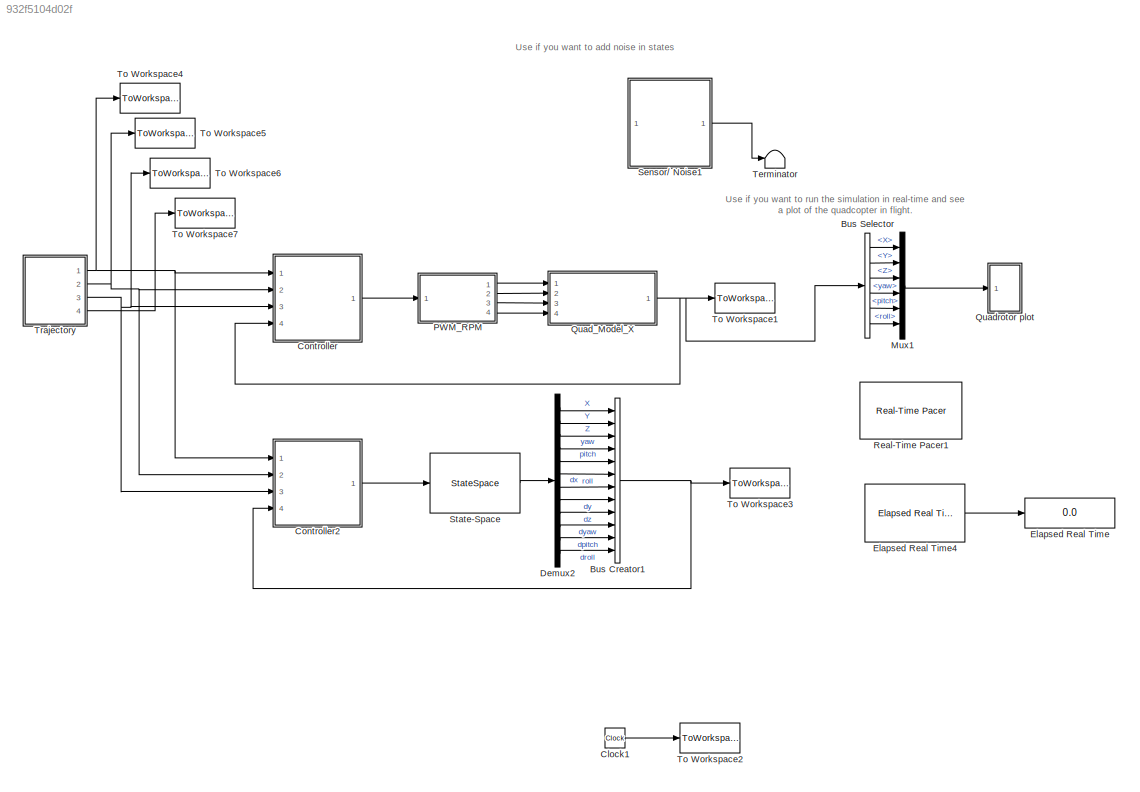
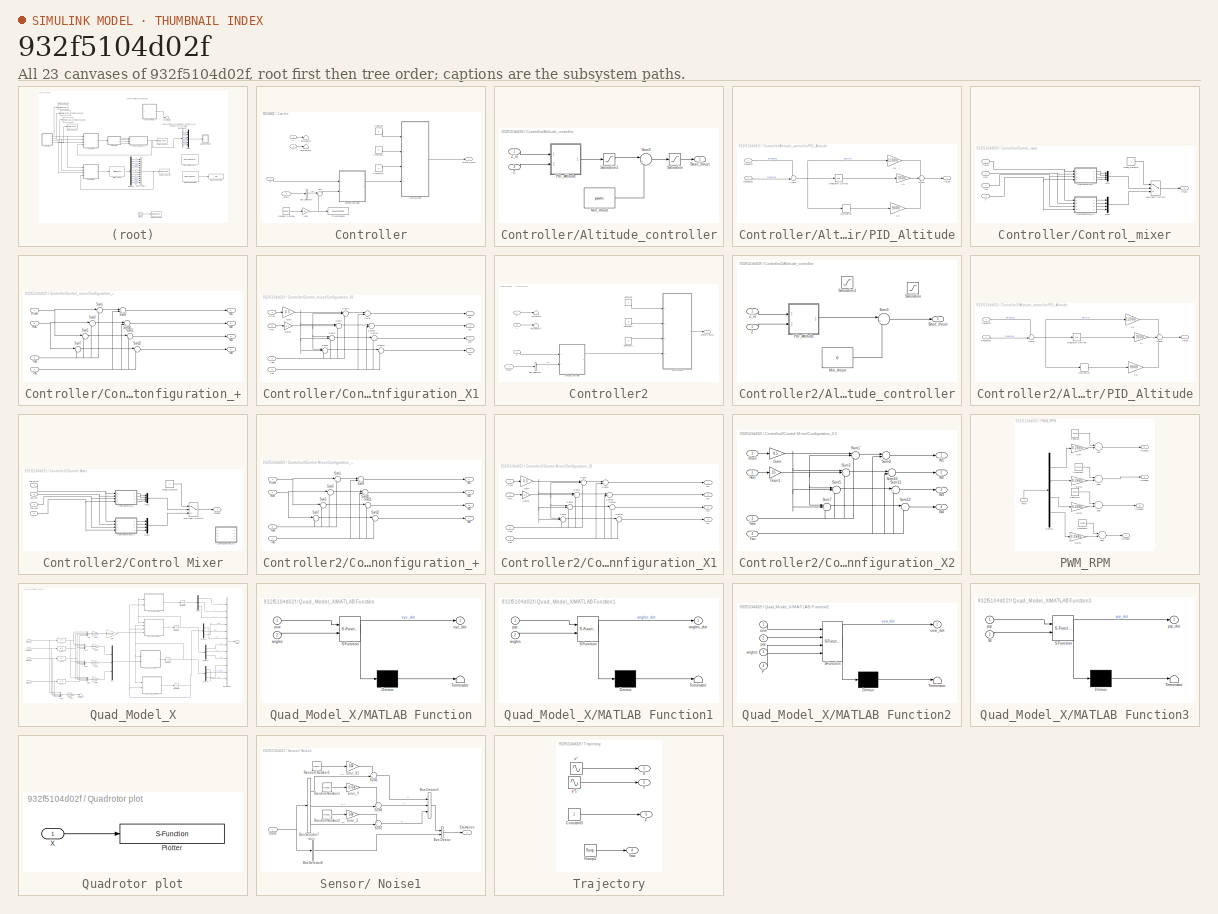
[diagram: thumbnail index - all 23 canvases of the model, root first then tree order]
MODEL slx_932f5104d02f
KIND model
CONFIG AbsTol = auto
CONFIG EnableMultiTasking = off
CONFIG FixedStep = 1e-3
CONFIG InitFcn = % load parameters of the default quadrotor\ndisp('Quadrotor parameters loaded by InitFcn')\nmdl_quadrotor
CONFIG MaxStep = auto
CONFIG MinStep = auto
CONFIG RelTol = 1e-5
CONFIG SampleTimeConstraint = Unconstrained
CONFIG Solver = ode45
CONFIG SolverName = ode45
CONFIG StartTime = 0.0
CONFIG StopTime = 50
BLOCK [BusCreator] Bus Creator1
  DisplayOption = bar
  InheritFromInputs = on
  Inputs = 12
  Ports = [12, 1]
BLOCK [BusSelector] Bus Selector
  Commented = on
  OutputAsBus = off
  OutputSignals = X,Y,Z,yaw,pitch,roll
  Ports = [1, 6]
BLOCK [Clock] Clock1
BLOCK [SubSystem] Controller
  Ports = [4, 1]
  RequestExecContextInheritance = off
  TreatAsAtomicUnit = on
BLOCK [SubSystem] Controller/Altitude_controller
  Ports = [2, 1]
  RequestExecContextInheritance = off
BLOCK [Outport] Controller/Altitude_controller/Base_thrust
  IconDisplay = Port number
BLOCK [Constant] Controller/Altitude_controller/Min_thrust 
  SampleTime = 0
  Value = pwm
BLOCK [SubSystem] Controller/Altitude_controller/PID_Altitude
  Ports = [2, 1]
  RequestExecContextInheritance = off
BLOCK [Outport] Controller/Altitude_controller/PID_Altitude/Adjust
  IconDisplay = Port number
BLOCK [Derivative] Controller/Altitude_controller/PID_Altitude/Derivative
BLOCK [Integrator] Controller/Altitude_controller/PID_Altitude/Integrator Limited
  LimitOutput = on
  LowerSaturationLimit = -1000
  Ports = [1, 1]
  UpperSaturationLimit = 1000
BLOCK [Gain] Controller/Altitude_controller/PID_Altitude/Kd
  Gain = 9000
  OutDataTypeStr = Inherit: Inherit via internal rule
  OutMax = [200]
  OutMin = [-200]
  ParamDataTypeStr = Inherit: Inherit via internal rule
  SaturateOnIntegerOverflow = off
BLOCK [Gain] Controller/Altitude_controller/PID_Altitude/Ki
  Gain = 3500
  OutDataTypeStr = Inherit: Inherit via internal rule
  OutMax = [200]
  OutMin = [-200]
  ParamDataTypeStr = Inherit: Inherit via internal rule
  SaturateOnIntegerOverflow = off
BLOCK [Gain] Controller/Altitude_controller/PID_Altitude/Kp
  Gain = 11000
  OutDataTypeStr = Inherit: Inherit via internal rule
  OutMax = [200]
  OutMin = [-200]
  ParamDataTypeStr = Inherit: Inherit via internal rule
  SaturateOnIntegerOverflow = off
BLOCK [Inport] Controller/Altitude_controller/PID_Altitude/Measured
  IconDisplay = Port number
  Port = 2
BLOCK [Inport] Controller/Altitude_controller/PID_Altitude/Setpoint
  IconDisplay = Port number
BLOCK [Sum] Controller/Altitude_controller/PID_Altitude/Sum5
  IconShape = round
  InputSameDT = off
  Inputs = +++
  OutDataTypeStr = Inherit: Inherit via internal rule
  Ports = [3, 1]
  SaturateOnIntegerOverflow = off
BLOCK [Sum] Controller/Altitude_controller/PID_Altitude/Sum6
  IconShape = round
  InputSameDT = off
  Inputs = +-|
  OutDataTypeStr = Inherit: Inherit via internal rule
  Ports = [2, 1]
  SaturateOnIntegerOverflow = off
BLOCK [Saturate] Controller/Altitude_controller/Saturation
  InputPortMap = u0
  LowerLimit = -20000
  Ports = [1, 1]
  UpperLimit = 60000
BLOCK [Saturate] Controller/Altitude_controller/Saturation1
  InputPortMap = u0
  LowerLimit = -20000
  Ports = [1, 1]
  UpperLimit = 15000
BLOCK [Sum] Controller/Altitude_controller/Sum3
  IconShape = round
  InputSameDT = off
  Inputs = |++
  OutDataTypeStr = Inherit: Inherit via internal rule
  Ports = [2, 1]
  SaturateOnIntegerOverflow = off
BLOCK [Inport] Controller/Altitude_controller/Z
  IconDisplay = Port number
  Port = 2
BLOCK [Inport] Controller/Altitude_controller/Z_in
  IconDisplay = Port number
BLOCK [BusSelector] Controller/Bus Selector5
  OutputAsBus = off
  OutputSignals = Z
  Ports = [1, 1]
BLOCK [Constant] Controller/Constant
  Value = 0
BLOCK [Constant] Controller/Constant1
  Value = 0
BLOCK [Constant] Controller/Constant2
  Value = 0
BLOCK [SubSystem] Controller/Control_mixer
  Ports = [4, 1]
  RequestExecContextInheritance = off
BLOCK [SubSystem] Controller/Control_mixer/Configuration_+
  Ports = [4, 4]
  RequestExecContextInheritance = off
BLOCK [Inport] Controller/Control_mixer/Configuration_+/Pitch
  IconDisplay = Port number
BLOCK [Inport] Controller/Control_mixer/Configuration_+/Roll
  IconDisplay = Port number
  Port = 2
BLOCK [Sum] Controller/Control_mixer/Configuration_+/Sum1
  IconShape = round
  Inputs = |++
  Ports = [2, 1]
BLOCK [Sum] Controller/Control_mixer/Configuration_+/Sum10
  IconShape = round
  Inputs = |++
  Ports = [2, 1]
BLOCK [Sum] Controller/Control_mixer/Configuration_+/Sum11
  IconShape = round
  Inputs = |++
  Ports = [2, 1]
BLOCK [Sum] Controller/Control_mixer/Configuration_+/Sum12
  IconShape = round
  Inputs = |++
  Ports = [2, 1]
BLOCK [Sum] Controller/Control_mixer/Configuration_+/Sum3
  IconShape = round
  Inputs = |--
  Ports = [2, 1]
BLOCK [Sum] Controller/Control_mixer/Configuration_+/Sum5
  IconShape = round
  Inputs = |-+
  Ports = [2, 1]
BLOCK [Sum] Controller/Control_mixer/Configuration_+/Sum7
  IconShape = round
  Inputs = |+-
  Ports = [2, 1]
BLOCK [Sum] Controller/Control_mixer/Configuration_+/Sum9
  IconShape = round
  Inputs = |++
  Ports = [2, 1]
BLOCK [Inport] Controller/Control_mixer/Configuration_+/Tau
  IconDisplay = Port number
  Port = 4
BLOCK [Outport] Controller/Control_mixer/Configuration_+/W1
  IconDisplay = Port number
BLOCK [Outport] Controller/Control_mixer/Configuration_+/W2
  IconDisplay = Port number
  Port = 2
BLOCK [Outport] Controller/Control_mixer/Configuration_+/W3
  IconDisplay = Port number
  Port = 3
BLOCK [Outport] Controller/Control_mixer/Configuration_+/W4
  IconDisplay = Port number
  Port = 4
BLOCK [Inport] Controller/Control_mixer/Configuration_+/Yaw
  IconDisplay = Port number
  Port = 3
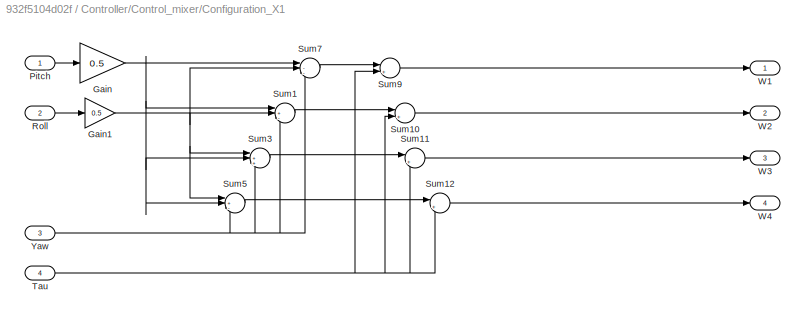
BLOCK [SubSystem] Controller/Control_mixer/Configuration_X1
  Ports = [4, 4]
  RequestExecContextInheritance = off
BLOCK [Gain] Controller/Control_mixer/Configuration_X1/Gain
  Gain = 0.5
  OutDataTypeStr = Inherit: Inherit via internal rule
  ParamDataTypeStr = Inherit: Inherit via internal rule
  SaturateOnIntegerOverflow = off
BLOCK [Gain] Controller/Control_mixer/Configuration_X1/Gain1
  Gain = 0.5
  OutDataTypeStr = Inherit: Inherit via internal rule
  ParamDataTypeStr = Inherit: Inherit via internal rule
  SaturateOnIntegerOverflow = off
BLOCK [Inport] Controller/Control_mixer/Configuration_X1/Pitch
  IconDisplay = Port number
BLOCK [Inport] Controller/Control_mixer/Configuration_X1/Roll
  IconDisplay = Port number
  Port = 2
BLOCK [Sum] Controller/Control_mixer/Configuration_X1/Sum1
  IconShape = round
  Inputs = |+-+
  Ports = [3, 1]
BLOCK [Sum] Controller/Control_mixer/Configuration_X1/Sum10
  IconShape = round
  Inputs = |++
  Ports = [2, 1]
BLOCK [Sum] Controller/Control_mixer/Configuration_X1/Sum11
  IconShape = round
  Inputs = |++
  Ports = [2, 1]
BLOCK [Sum] Controller/Control_mixer/Configuration_X1/Sum12
  IconShape = round
  Inputs = |++
  Ports = [2, 1]
BLOCK [Sum] Controller/Control_mixer/Configuration_X1/Sum3
  IconShape = round
  Inputs = |++-
  Ports = [3, 1]
BLOCK [Sum] Controller/Control_mixer/Configuration_X1/Sum5
  IconShape = round
  Inputs = |+-+
  Ports = [3, 1]
BLOCK [Sum] Controller/Control_mixer/Configuration_X1/Sum7
  IconShape = round
  Inputs = |---
  Ports = [3, 1]
BLOCK [Sum] Controller/Control_mixer/Configuration_X1/Sum9
  IconShape = round
  Inputs = |++
  Ports = [2, 1]
BLOCK [Inport] Controller/Control_mixer/Configuration_X1/Tau
  IconDisplay = Port number
  Port = 4
BLOCK [Outport] Controller/Control_mixer/Configuration_X1/W1
  IconDisplay = Port number
BLOCK [Outport] Controller/Control_mixer/Configuration_X1/W2
  IconDisplay = Port number
  Port = 2
BLOCK [Outport] Controller/Control_mixer/Configuration_X1/W3
  IconDisplay = Port number
  Port = 3
BLOCK [Outport] Controller/Control_mixer/Configuration_X1/W4
  IconDisplay = Port number
  Port = 4
BLOCK [Inport] Controller/Control_mixer/Configuration_X1/Yaw
  IconDisplay = Port number
  Port = 3
BLOCK [Constant] Controller/Control_mixer/Mode_Selector
  Value = 2
BLOCK [MultiPortSwitch] Controller/Control_mixer/Multiport Switch
  InputSameDT = off
  Inputs = 2
  Ports = [3, 1]
  SaturateOnIntegerOverflow = off
BLOCK [Mux] Controller/Control_mixer/Mux
  DisplayOption = bar
  Ports = [4, 1]
BLOCK [Mux] Controller/Control_mixer/Mux1
  DisplayOption = bar
  Ports = [4, 1]
BLOCK [Outport] Controller/Control_mixer/PWM
  IconDisplay = Port number
BLOCK [Inport] Controller/Control_mixer/Pitch
  IconDisplay = Port number
BLOCK [Inport] Controller/Control_mixer/Roll	
  IconDisplay = Port number
  Port = 2
BLOCK [Inport] Controller/Control_mixer/T
  IconDisplay = Port number
  Port = 4
BLOCK [Inport] Controller/Control_mixer/Yaw
  IconDisplay = Port number
  Port = 3
BLOCK [Gain] Controller/Gain
  Gain = 0.1
  OutDataTypeStr = Inherit: Inherit via internal rule
  ParamDataTypeStr = Inherit: Inherit via internal rule
  SaturateOnIntegerOverflow = off
BLOCK [Outport] Controller/Motors_PWM
  IconDisplay = Port number
BLOCK [RandomNumber] Controller/Random Number
  SampleTime = 0.01
BLOCK [Inport] Controller/State
  IconDisplay = Port number
  Port = 4
BLOCK [Sum] Controller/Sum
  IconShape = round
  InputSameDT = off
  Inputs = |++
  OutDataTypeStr = Inherit: Inherit via internal rule
  Ports = [2, 1]
  SaturateOnIntegerOverflow = off
BLOCK [Terminator] Controller/Terminator
BLOCK [Terminator] Controller/Terminator1
BLOCK [ToWorkspace] Controller/To Workspace
  FixptAsFi = on
  MaxDataPoints = inf
  Ports = [1]
  SampleTime = -1
  SaveFormat = Timeseries
  VariableName = z_lin_noise
BLOCK [Inport] Controller/X
  IconDisplay = Port number
BLOCK [Inport] Controller/Y
  IconDisplay = Port number
  Port = 2
BLOCK [Inport] Controller/Z
  IconDisplay = Port number
  Port = 3
BLOCK [SubSystem] Controller2
  Ports = [4, 1]
  RequestExecContextInheritance = off
  TreatAsAtomicUnit = on
BLOCK [SubSystem] Controller2/Altitude_controller
  Ports = [2, 1]
  RequestExecContextInheritance = off
BLOCK [Outport] Controller2/Altitude_controller/Base_thrust
  IconDisplay = Port number
BLOCK [Constant] Controller2/Altitude_controller/Min_thrust 
  SampleTime = 0
  Value = 0
BLOCK [SubSystem] Controller2/Altitude_controller/PID_Altitude
  Ports = [2, 1]
  RequestExecContextInheritance = off
BLOCK [Outport] Controller2/Altitude_controller/PID_Altitude/Adjust
  IconDisplay = Port number
BLOCK [Derivative] Controller2/Altitude_controller/PID_Altitude/Derivative
BLOCK [Integrator] Controller2/Altitude_controller/PID_Altitude/Integrator Limited
  LimitOutput = on
  LowerSaturationLimit = -1000
  Ports = [1, 1]
  UpperSaturationLimit = 1000
BLOCK [Gain] Controller2/Altitude_controller/PID_Altitude/Kd
  Gain = 9000
  OutDataTypeStr = Inherit: Inherit via internal rule
  OutMax = [200]
  OutMin = [-200]
  ParamDataTypeStr = Inherit: Inherit via internal rule
  SaturateOnIntegerOverflow = off
BLOCK [Gain] Controller2/Altitude_controller/PID_Altitude/Ki
  Gain = 3500
  OutDataTypeStr = Inherit: Inherit via internal rule
  OutMax = [200]
  OutMin = [-200]
  ParamDataTypeStr = Inherit: Inherit via internal rule
  SaturateOnIntegerOverflow = off
BLOCK [Gain] Controller2/Altitude_controller/PID_Altitude/Kp
  Gain = 11000
  OutDataTypeStr = Inherit: Inherit via internal rule
  OutMax = [200]
  OutMin = [-200]
  ParamDataTypeStr = Inherit: Inherit via internal rule
  SaturateOnIntegerOverflow = off
BLOCK [Inport] Controller2/Altitude_controller/PID_Altitude/Measured
  IconDisplay = Port number
  Port = 2
BLOCK [Inport] Controller2/Altitude_controller/PID_Altitude/Setpoint
  IconDisplay = Port number
BLOCK [Sum] Controller2/Altitude_controller/PID_Altitude/Sum5
  IconShape = round
  InputSameDT = off
  Inputs = +++
  OutDataTypeStr = Inherit: Inherit via internal rule
  Ports = [3, 1]
  SaturateOnIntegerOverflow = off
BLOCK [Sum] Controller2/Altitude_controller/PID_Altitude/Sum6
  IconShape = round
  InputSameDT = off
  Inputs = +-|
  OutDataTypeStr = Inherit: Inherit via internal rule
  Ports = [2, 1]
  SaturateOnIntegerOverflow = off
BLOCK [Saturate] Controller2/Altitude_controller/Saturation
  InputPortMap = u0
  LowerLimit = -20000
  Ports = [1, 1]
  UpperLimit = 60000
BLOCK [Saturate] Controller2/Altitude_controller/Saturation1
  InputPortMap = u0
  LowerLimit = -20000
  Ports = [1, 1]
  UpperLimit = 15000
BLOCK [Sum] Controller2/Altitude_controller/Sum3
  IconShape = round
  InputSameDT = off
  Inputs = |++
  OutDataTypeStr = Inherit: Inherit via internal rule
  Ports = [2, 1]
  SaturateOnIntegerOverflow = off
BLOCK [Inport] Controller2/Altitude_controller/Z
  IconDisplay = Port number
  Port = 2
BLOCK [Inport] Controller2/Altitude_controller/Z_in
  IconDisplay = Port number
BLOCK [BusSelector] Controller2/Bus Selector5
  OutputAsBus = off
  OutputSignals = Z
  Ports = [1, 1]
BLOCK [Constant] Controller2/Constant
  Value = 0
BLOCK [Constant] Controller2/Constant1
  Value = 0
BLOCK [Constant] Controller2/Constant2
  Value = 0
BLOCK [SubSystem] Controller2/Control Mixer
  AncestorBlock = roblocks/Dynamics/Control Mixer 4
  Ports = [4, 1]
  RequestExecContextInheritance = off
BLOCK [SubSystem] Controller2/Control Mixer/Configuration_+
  Ports = [4, 4]
  RequestExecContextInheritance = off
BLOCK [Inport] Controller2/Control Mixer/Configuration_+/Pitch
  IconDisplay = Port number
BLOCK [Inport] Controller2/Control Mixer/Configuration_+/Roll
  IconDisplay = Port number
  Port = 2
BLOCK [Sum] Controller2/Control Mixer/Configuration_+/Sum1
  IconShape = round
  Inputs = |++
  Ports = [2, 1]
BLOCK [Sum] Controller2/Control Mixer/Configuration_+/Sum10
  IconShape = round
  Inputs = |++
  Ports = [2, 1]
BLOCK [Sum] Controller2/Control Mixer/Configuration_+/Sum11
  IconShape = round
  Inputs = |++
  Ports = [2, 1]
BLOCK [Sum] Controller2/Control Mixer/Configuration_+/Sum12
  IconShape = round
  Inputs = |++
  Ports = [2, 1]
BLOCK [Sum] Controller2/Control Mixer/Configuration_+/Sum3
  IconShape = round
  Inputs = |--
  Ports = [2, 1]
BLOCK [Sum] Controller2/Control Mixer/Configuration_+/Sum5
  IconShape = round
  Inputs = |-+
  Ports = [2, 1]
BLOCK [Sum] Controller2/Control Mixer/Configuration_+/Sum7
  IconShape = round
  Inputs = |+-
  Ports = [2, 1]
BLOCK [Sum] Controller2/Control Mixer/Configuration_+/Sum9
  IconShape = round
  Inputs = |++
  Ports = [2, 1]
BLOCK [Inport] Controller2/Control Mixer/Configuration_+/Tau
  IconDisplay = Port number
  Port = 4
BLOCK [Outport] Controller2/Control Mixer/Configuration_+/W1
  IconDisplay = Port number
BLOCK [Outport] Controller2/Control Mixer/Configuration_+/W2
  IconDisplay = Port number
  Port = 2
BLOCK [Outport] Controller2/Control Mixer/Configuration_+/W3
  IconDisplay = Port number
  Port = 3
BLOCK [Outport] Controller2/Control Mixer/Configuration_+/W4
  IconDisplay = Port number
  Port = 4
BLOCK [Inport] Controller2/Control Mixer/Configuration_+/Yaw
  IconDisplay = Port number
  Port = 3
BLOCK [SubSystem] Controller2/Control Mixer/Configuration_X1
  Ports = [4, 4]
  RequestExecContextInheritance = off
BLOCK [Gain] Controller2/Control Mixer/Configuration_X1/Gain
  Gain = 0.5
  OutDataTypeStr = Inherit: Inherit via internal rule
  ParamDataTypeStr = Inherit: Inherit via internal rule
  SaturateOnIntegerOverflow = off
BLOCK [Gain] Controller2/Control Mixer/Configuration_X1/Gain1
  Gain = 0.5
  OutDataTypeStr = Inherit: Inherit via internal rule
  ParamDataTypeStr = Inherit: Inherit via internal rule
  SaturateOnIntegerOverflow = off
BLOCK [Inport] Controller2/Control Mixer/Configuration_X1/Pitch
  IconDisplay = Port number
BLOCK [Inport] Controller2/Control Mixer/Configuration_X1/Roll
  IconDisplay = Port number
  Port = 2
BLOCK [Sum] Controller2/Control Mixer/Configuration_X1/Sum1
  IconShape = round
  Inputs = |+--
  Ports = [3, 1]
BLOCK [Sum] Controller2/Control Mixer/Configuration_X1/Sum10
  IconShape = round
  Inputs = |++
  Ports = [2, 1]
BLOCK [Sum] Controller2/Control Mixer/Configuration_X1/Sum11
  IconShape = round
  Inputs = |++
  Ports = [2, 1]
BLOCK [Sum] Controller2/Control Mixer/Configuration_X1/Sum12
  IconShape = round
  Inputs = |++
  Ports = [2, 1]
BLOCK [Sum] Controller2/Control Mixer/Configuration_X1/Sum3
  IconShape = round
  Inputs = |+++
  Ports = [3, 1]
BLOCK [Sum] Controller2/Control Mixer/Configuration_X1/Sum5
  IconShape = round
  Inputs = |+--
  Ports = [3, 1]
BLOCK [Sum] Controller2/Control Mixer/Configuration_X1/Sum7
  IconShape = round
  Inputs = |--+
  Ports = [3, 1]
BLOCK [Sum] Controller2/Control Mixer/Configuration_X1/Sum9
  IconShape = round
  Inputs = |++
  Ports = [2, 1]
BLOCK [Inport] Controller2/Control Mixer/Configuration_X1/Tau
  IconDisplay = Port number
  Port = 4
BLOCK [Outport] Controller2/Control Mixer/Configuration_X1/W1
  IconDisplay = Port number
BLOCK [Outport] Controller2/Control Mixer/Configuration_X1/W2
  IconDisplay = Port number
  Port = 2
BLOCK [Outport] Controller2/Control Mixer/Configuration_X1/W3
  IconDisplay = Port number
  Port = 3
BLOCK [Outport] Controller2/Control Mixer/Configuration_X1/W4
  IconDisplay = Port number
  Port = 4
BLOCK [Inport] Controller2/Control Mixer/Configuration_X1/Yaw
  IconDisplay = Port number
  Port = 3
BLOCK [SubSystem] Controller2/Control Mixer/Configuration_X2
  Ports = [4, 4]
  RequestExecContextInheritance = off
BLOCK [Gain] Controller2/Control Mixer/Configuration_X2/Gain
  Gain = 0.5
  OutDataTypeStr = Inherit: Inherit via internal rule
  ParamDataTypeStr = Inherit: Inherit via internal rule
  SaturateOnIntegerOverflow = off
BLOCK [Gain] Controller2/Control Mixer/Configuration_X2/Gain1
  Gain = 0.5
  OutDataTypeStr = Inherit: Inherit via internal rule
  ParamDataTypeStr = Inherit: Inherit via internal rule
  SaturateOnIntegerOverflow = off
BLOCK [Inport] Controller2/Control Mixer/Configuration_X2/Pitch
  IconDisplay = Port number
BLOCK [Inport] Controller2/Control Mixer/Configuration_X2/Roll
  IconDisplay = Port number
  Port = 2
BLOCK [Sum] Controller2/Control Mixer/Configuration_X2/Sum1
  IconShape = round
  Inputs = |--+
  Ports = [3, 1]
BLOCK [Sum] Controller2/Control Mixer/Configuration_X2/Sum10
  IconShape = round
  Inputs = |++
  Ports = [2, 1]
BLOCK [Sum] Controller2/Control Mixer/Configuration_X2/Sum11
  IconShape = round
  Inputs = |++
  Ports = [2, 1]
BLOCK [Sum] Controller2/Control Mixer/Configuration_X2/Sum12
  IconShape = round
  Inputs = |++
  Ports = [2, 1]
BLOCK [Sum] Controller2/Control Mixer/Configuration_X2/Sum3
  IconShape = round
  Inputs = |+--
  Ports = [3, 1]
BLOCK [Sum] Controller2/Control Mixer/Configuration_X2/Sum5
  IconShape = round
  Inputs = |+++
  Ports = [3, 1]
BLOCK [Sum] Controller2/Control Mixer/Configuration_X2/Sum7
  IconShape = round
  Inputs = |-+-
  Ports = [3, 1]
BLOCK [Sum] Controller2/Control Mixer/Configuration_X2/Sum9
  IconShape = round
  Inputs = |++
  Ports = [2, 1]
BLOCK [Inport] Controller2/Control Mixer/Configuration_X2/Tau
  IconDisplay = Port number
  Port = 4
BLOCK [Outport] Controller2/Control Mixer/Configuration_X2/W1
  IconDisplay = Port number
BLOCK [Outport] Controller2/Control Mixer/Configuration_X2/W2
  IconDisplay = Port number
  Port = 2
BLOCK [Outport] Controller2/Control Mixer/Configuration_X2/W3
  IconDisplay = Port number
  Port = 3
BLOCK [Outport] Controller2/Control Mixer/Configuration_X2/W4
  IconDisplay = Port number
  Port = 4
BLOCK [Inport] Controller2/Control Mixer/Configuration_X2/Yaw
  IconDisplay = Port number
  Port = 3
BLOCK [Constant] Controller2/Control Mixer/Mode_Selector
  Value = 2
BLOCK [MultiPortSwitch] Controller2/Control Mixer/Multiport Switch
  InputSameDT = off
  Inputs = 2
  Ports = [3, 1]
  SaturateOnIntegerOverflow = off
BLOCK [Mux] Controller2/Control Mixer/Mux
  DisplayOption = bar
  Ports = [4, 1]
BLOCK [Mux] Controller2/Control Mixer/Mux1
  DisplayOption = bar
  Ports = [4, 1]
BLOCK [Inport] Controller2/Control Mixer/T
  IconDisplay = Port number
  Port = 4
BLOCK [Outport] Controller2/Control Mixer/omega
  IconDisplay = Port number
BLOCK [Inport] Controller2/Control Mixer/tau pitch
  IconDisplay = Port number
BLOCK [Inport] Controller2/Control Mixer/tau roll
  IconDisplay = Port number
  Port = 2
BLOCK [Inport] Controller2/Control Mixer/tau yaw
  IconDisplay = Port number
  Port = 3
BLOCK [Outport] Controller2/Motors_PWM
  IconDisplay = Port number
BLOCK [Inport] Controller2/State
  IconDisplay = Port number
  Port = 4
BLOCK [Terminator] Controller2/Terminator
BLOCK [Terminator] Controller2/Terminator1
BLOCK [Inport] Controller2/X
  IconDisplay = Port number
BLOCK [Inport] Controller2/Y
  IconDisplay = Port number
  Port = 2
BLOCK [Inport] Controller2/Z
  IconDisplay = Port number
  Port = 3
BLOCK [Demux] Demux2
  DisplayOption = bar
  Outputs = 12
  Ports = [1, 12]
BLOCK [Display] Elapsed Real Time
  Commented = on
  Decimation = 2
  Ports = [1]
BLOCK [Reference] Elapsed Real Time4  REF=realtime_pacer_lib/Elapsed Real Time
  Commented = on
  Ports = [0, 1]
  SourceBlock = realtime_pacer_lib/Elapsed Real Time
  SourceType = RealTime_Elapsed
BLOCK [Mux] Mux1
  Commented = on
  DisplayOption = bar
  Inputs = 6
  Ports = [6, 1]
BLOCK [SubSystem] PWM_RPM
  Ports = [1, 4]
  RequestExecContextInheritance = off
BLOCK [Sum] PWM_RPM/Add
  InputSameDT = off
  OutDataTypeStr = Inherit: Inherit via internal rule
  Ports = [2, 1]
  SaturateOnIntegerOverflow = off
BLOCK [Sum] PWM_RPM/Add1
  InputSameDT = off
  OutDataTypeStr = Inherit: Inherit via internal rule
  Ports = [2, 1]
  SaturateOnIntegerOverflow = off
BLOCK [Sum] PWM_RPM/Add2
  InputSameDT = off
  OutDataTypeStr = Inherit: Inherit via internal rule
  Ports = [2, 1]
  SaturateOnIntegerOverflow = off
BLOCK [Sum] PWM_RPM/Add3
  InputSameDT = off
  OutDataTypeStr = Inherit: Inherit via internal rule
  Ports = [2, 1]
  SaturateOnIntegerOverflow = off
BLOCK [Constant] PWM_RPM/Constant
  Value = 4070.3
BLOCK [Constant] PWM_RPM/Constant1
  Value = 4070.3
BLOCK [Constant] PWM_RPM/Constant2
  Value = 4070.3
BLOCK [Constant] PWM_RPM/Constant3
  Value = 4070.3
BLOCK [Demux] PWM_RPM/Demux
  DisplayOption = bar
  Ports = [1, 4]
BLOCK [Gain] PWM_RPM/Gain
  Gain = 0.2685
  OutDataTypeStr = Inherit: Inherit via internal rule
  ParamDataTypeStr = Inherit: Inherit via internal rule
  SaturateOnIntegerOverflow = off
BLOCK [Gain] PWM_RPM/Gain2
  Gain = 0.2685
  OutDataTypeStr = Inherit: Inherit via internal rule
  ParamDataTypeStr = Inherit: Inherit via internal rule
  SaturateOnIntegerOverflow = off
BLOCK [Gain] PWM_RPM/Gain3
  Gain = 0.2685
  OutDataTypeStr = Inherit: Inherit via internal rule
  ParamDataTypeStr = Inherit: Inherit via internal rule
  SaturateOnIntegerOverflow = off
BLOCK [Gain] PWM_RPM/Gain5
  Gain = 0.2685
  OutDataTypeStr = Inherit: Inherit via internal rule
  ParamDataTypeStr = Inherit: Inherit via internal rule
  SaturateOnIntegerOverflow = off
BLOCK [Outport] PWM_RPM/Omega1
  IconDisplay = Port number
BLOCK [Outport] PWM_RPM/Omega2
  IconDisplay = Port number
  Port = 2
BLOCK [Outport] PWM_RPM/Omega3
  IconDisplay = Port number
  Port = 3
BLOCK [Outport] PWM_RPM/Omega4
  IconDisplay = Port number
  Port = 4
BLOCK [Inport] PWM_RPM/PWM
  IconDisplay = Port number
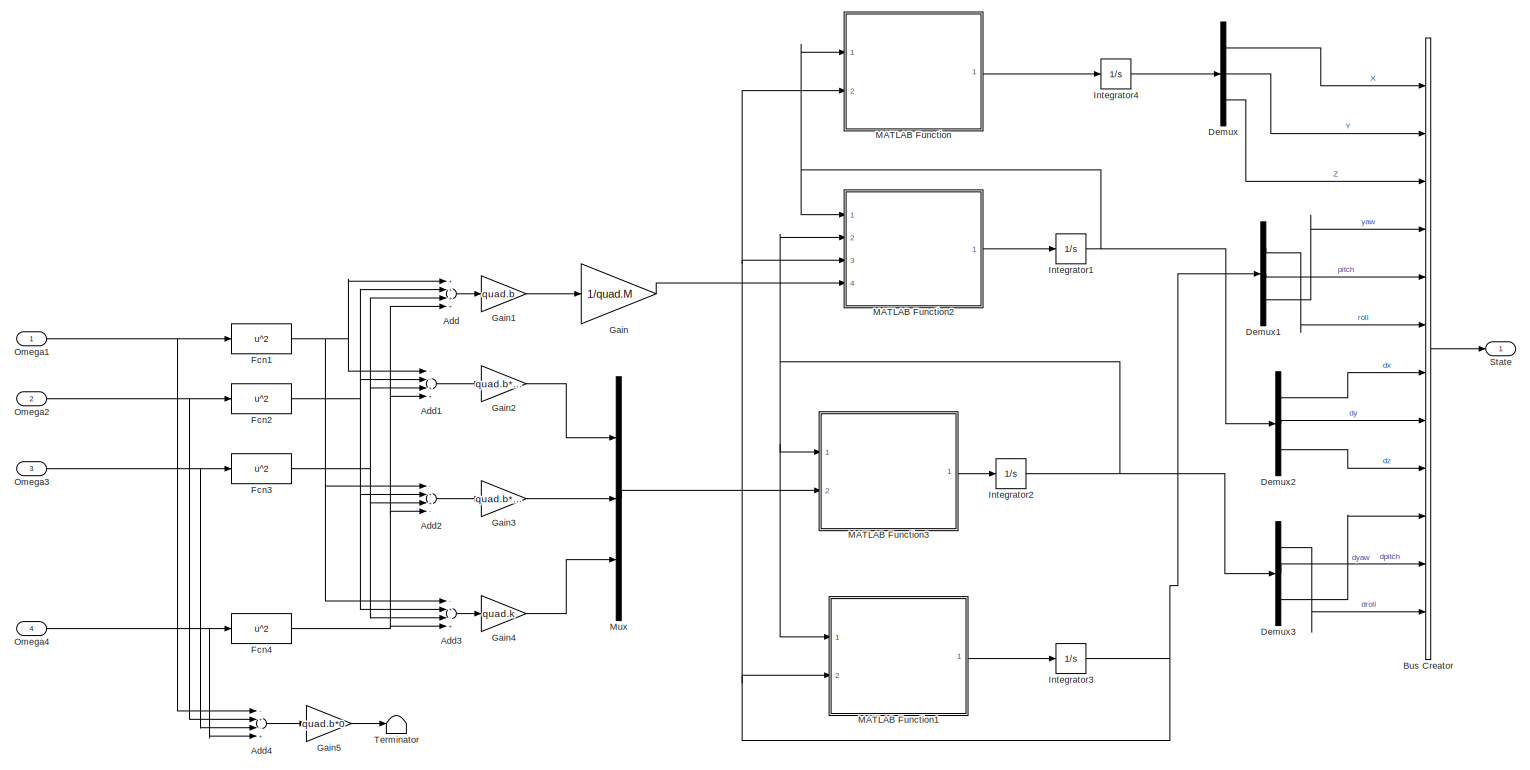
[diagram: Quad_Model_X - part 1/1, most of the canvas]
BLOCK [SubSystem] Quad_Model_X
  Ports = [4, 1]
  RequestExecContextInheritance = off
BLOCK [Sum] Quad_Model_X/Add
  InputSameDT = off
  Inputs = ++++
  OutDataTypeStr = Inherit: Inherit via internal rule
  Ports = [4, 1]
  SaturateOnIntegerOverflow = off
BLOCK [Sum] Quad_Model_X/Add1
  InputSameDT = off
  Inputs = --++
  OutDataTypeStr = Inherit: Inherit via internal rule
  Ports = [4, 1]
  SaturateOnIntegerOverflow = off
BLOCK [Sum] Quad_Model_X/Add2
  InputSameDT = off
  Inputs = -++-
  OutDataTypeStr = Inherit: Inherit via internal rule
  Ports = [4, 1]
  SaturateOnIntegerOverflow = off
BLOCK [Sum] Quad_Model_X/Add3
  InputSameDT = off
  Inputs = -+-+
  OutDataTypeStr = Inherit: Inherit via internal rule
  Ports = [4, 1]
  SaturateOnIntegerOverflow = off
BLOCK [Sum] Quad_Model_X/Add4
  InputSameDT = off
  Inputs = -+-+
  OutDataTypeStr = Inherit: Inherit via internal rule
  Ports = [4, 1]
  SaturateOnIntegerOverflow = off
BLOCK [BusCreator] Quad_Model_X/Bus Creator
  DisplayOption = bar
  InheritFromInputs = on
  Inputs = 12
  Ports = [12, 1]
BLOCK [Demux] Quad_Model_X/Demux
  DisplayOption = bar
  Outputs = 3
  Ports = [1, 3]
BLOCK [Demux] Quad_Model_X/Demux1
  DisplayOption = bar
  Outputs = 3
  Ports = [1, 3]
BLOCK [Demux] Quad_Model_X/Demux2
  DisplayOption = bar
  Outputs = 3
  Ports = [1, 3]
BLOCK [Demux] Quad_Model_X/Demux3
  DisplayOption = bar
  Outputs = 3
  Ports = [1, 3]
BLOCK [Fcn] Quad_Model_X/Fcn1
  Expr = u^2
BLOCK [Fcn] Quad_Model_X/Fcn2
  Expr = u^2
BLOCK [Fcn] Quad_Model_X/Fcn3
  Expr = u^2
BLOCK [Fcn] Quad_Model_X/Fcn4
  Expr = u^2
BLOCK [Gain] Quad_Model_X/Gain
  Gain = 1/quad.M
  OutDataTypeStr = Inherit: Inherit via internal rule
  ParamDataTypeStr = Inherit: Inherit via internal rule
  SaturateOnIntegerOverflow = off
BLOCK [Gain] Quad_Model_X/Gain1
  Gain = quad.b
  OutDataTypeStr = Inherit: Inherit via internal rule
  ParamDataTypeStr = Inherit: Inherit via internal rule
  SaturateOnIntegerOverflow = off
BLOCK [Gain] Quad_Model_X/Gain2
  Gain = quad.b*quad.d*sin(pi/4)
  OutDataTypeStr = Inherit: Inherit via internal rule
  ParamDataTypeStr = Inherit: Inherit via internal rule
  SaturateOnIntegerOverflow = off
BLOCK [Gain] Quad_Model_X/Gain3
  Gain = quad.b*quad.d*sin(pi/4)
  OutDataTypeStr = Inherit: Inherit via internal rule
  ParamDataTypeStr = Inherit: Inherit via internal rule
  SaturateOnIntegerOverflow = off
BLOCK [Gain] Quad_Model_X/Gain4
  Gain = quad.k
  OutDataTypeStr = Inherit: Inherit via internal rule
  ParamDataTypeStr = Inherit: Inherit via internal rule
  SaturateOnIntegerOverflow = off
BLOCK [Gain] Quad_Model_X/Gain5
  Gain = quad.b*0
  OutDataTypeStr = Inherit: Inherit via internal rule
  ParamDataTypeStr = Inherit: Inherit via internal rule
  SaturateOnIntegerOverflow = off
BLOCK [Integrator] Quad_Model_X/Integrator1
  Ports = [1, 1]
BLOCK [Integrator] Quad_Model_X/Integrator2
  Ports = [1, 1]
BLOCK [Integrator] Quad_Model_X/Integrator3
  Ports = [1, 1]
BLOCK [Integrator] Quad_Model_X/Integrator4
  InitialCondition = [0;0;0]
  Ports = [1, 1]
BLOCK [SubSystem] Quad_Model_X/MATLAB Function
  ErrorFcn = Stateflow.Translate.translate
  PermitHierarchicalResolution = ExplicitOnly
  Ports = [2, 1]
  RequestExecContextInheritance = off
  SFBlockType = MATLAB Function
  TreatAsAtomicUnit = on
BLOCK [Demux] Quad_Model_X/MATLAB Function/ Demux 
  Outputs = 1
  Ports = [1, 1]
BLOCK [S-Function] Quad_Model_X/MATLAB Function/ SFunction 
  EnableBusSupport = on
  FunctionName = sf_sfun
  PortCounts = [2 2]
  Ports = [2, 2]
  SFcnIsStateOwnerBlock = off
  SFunctionDeploymentMode = off
  Tag = Stateflow S-Function 1
BLOCK [Terminator] Quad_Model_X/MATLAB Function/ Terminator 
BLOCK [Inport] Quad_Model_X/MATLAB Function/angles
  IconDisplay = Port number
  Port = 2
BLOCK [Inport] Quad_Model_X/MATLAB Function/uvw
  IconDisplay = Port number
BLOCK [Outport] Quad_Model_X/MATLAB Function/xyz_dot
  IconDisplay = Port number
BLOCK [SubSystem] Quad_Model_X/MATLAB Function1
  ErrorFcn = Stateflow.Translate.translate
  PermitHierarchicalResolution = ExplicitOnly
  Ports = [2, 1]
  RequestExecContextInheritance = off
  SFBlockType = MATLAB Function
  TreatAsAtomicUnit = on
BLOCK [Demux] Quad_Model_X/MATLAB Function1/ Demux 
  Outputs = 1
  Ports = [1, 1]
BLOCK [S-Function] Quad_Model_X/MATLAB Function1/ SFunction 
  EnableBusSupport = on
  FunctionName = sf_sfun
  PortCounts = [2 2]
  Ports = [2, 2]
  SFcnIsStateOwnerBlock = off
  SFunctionDeploymentMode = off
  Tag = Stateflow S-Function 2
BLOCK [Terminator] Quad_Model_X/MATLAB Function1/ Terminator 
BLOCK [Inport] Quad_Model_X/MATLAB Function1/angles
  IconDisplay = Port number
  Port = 2
BLOCK [Outport] Quad_Model_X/MATLAB Function1/angles_dot
  IconDisplay = Port number
BLOCK [Inport] Quad_Model_X/MATLAB Function1/pqr
  IconDisplay = Port number
BLOCK [SubSystem] Quad_Model_X/MATLAB Function2
  ErrorFcn = Stateflow.Translate.translate
  PermitHierarchicalResolution = ExplicitOnly
  Ports = [4, 1]
  RequestExecContextInheritance = off
  SFBlockType = MATLAB Function
  TreatAsAtomicUnit = on
BLOCK [Demux] Quad_Model_X/MATLAB Function2/ Demux 
  Outputs = 1
  Ports = [1, 1]
BLOCK [S-Function] Quad_Model_X/MATLAB Function2/ SFunction 
  EnableBusSupport = on
  FunctionName = sf_sfun
  PortCounts = [4 2]
  Ports = [4, 2]
  SFcnIsStateOwnerBlock = off
  SFunctionDeploymentMode = off
  Tag = Stateflow S-Function 5
BLOCK [Terminator] Quad_Model_X/MATLAB Function2/ Terminator 
BLOCK [Inport] Quad_Model_X/MATLAB Function2/F
  IconDisplay = Port number
  Port = 4
BLOCK [Inport] Quad_Model_X/MATLAB Function2/angles
  IconDisplay = Port number
  Port = 3
BLOCK [Inport] Quad_Model_X/MATLAB Function2/pqr
  IconDisplay = Port number
  Port = 2
BLOCK [Inport] Quad_Model_X/MATLAB Function2/uvw
  IconDisplay = Port number
BLOCK [Outport] Quad_Model_X/MATLAB Function2/uvw_dot
  IconDisplay = Port number
BLOCK [SubSystem] Quad_Model_X/MATLAB Function3
  ErrorFcn = Stateflow.Translate.translate
  PermitHierarchicalResolution = ExplicitOnly
  Ports = [2, 1]
  RequestExecContextInheritance = off
  SFBlockType = MATLAB Function
  TreatAsAtomicUnit = on
BLOCK [Demux] Quad_Model_X/MATLAB Function3/ Demux 
  Outputs = 1
  Ports = [1, 1]
BLOCK [S-Function] Quad_Model_X/MATLAB Function3/ SFunction 
  EnableBusSupport = on
  FunctionName = sf_sfun
  PortCounts = [2 2]
  Ports = [2, 2]
  SFcnIsStateOwnerBlock = off
  SFunctionDeploymentMode = off
  Tag = Stateflow S-Function 6
BLOCK [Terminator] Quad_Model_X/MATLAB Function3/ Terminator 
BLOCK [Inport] Quad_Model_X/MATLAB Function3/M
  IconDisplay = Port number
  Port = 2
BLOCK [Inport] Quad_Model_X/MATLAB Function3/pqr
  IconDisplay = Port number
BLOCK [Outport] Quad_Model_X/MATLAB Function3/pqr_dot
  IconDisplay = Port number
BLOCK [Mux] Quad_Model_X/Mux
  DisplayOption = bar
  Inputs = 3
  Ports = [3, 1]
BLOCK [Inport] Quad_Model_X/Omega1
  IconDisplay = Port number
BLOCK [Inport] Quad_Model_X/Omega2
  IconDisplay = Port number
  Port = 2
BLOCK [Inport] Quad_Model_X/Omega3
  IconDisplay = Port number
  Port = 3
BLOCK [Inport] Quad_Model_X/Omega4
  IconDisplay = Port number
  Port = 4
BLOCK [Outport] Quad_Model_X/State
  IconDisplay = Port number
BLOCK [Terminator] Quad_Model_X/Terminator
BLOCK [SubSystem] Quadrotor plot
  AncestorBlock = roblocks/Robot Graphics/Quadrotor plot
  Commented = on
  Ports = [1]
  RequestExecContextInheritance = off
BLOCK [S-Function] Quadrotor plot/Plotter
  EnableBusSupport = off
  FunctionName = quadrotor_plot
  Parameters = [xydim, zdim], 1, 1,quad
  Ports = [1]
  SFcnIsStateOwnerBlock = off
  SFunctionDeploymentMode = off
BLOCK [Inport] Quadrotor plot/X
  IconDisplay = Port number
BLOCK [Reference] Real-Time Pacer1  REF=realtime_pacer_lib/Real-Time Pacer
  Commented = on
  Ports = []
  SourceBlock = realtime_pacer_lib/Real-Time Pacer
  SourceType = RealTime_Pacer
BLOCK [SubSystem] Sensor// Noise1
  Commented = on
  Ports = [1, 1]
  RequestExecContextInheritance = off
BLOCK [BusCreator] Sensor// Noise1/Bus Creator
  DisplayOption = bar
  InheritFromInputs = on
  Inputs = 2
  Ports = [2, 1]
BLOCK [BusCreator] Sensor// Noise1/Bus Creator1
  DisplayOption = bar
  InheritFromInputs = on
  Inputs = 3
  Ports = [3, 1]
BLOCK [BusSelector] Sensor// Noise1/Bus Selector7
  OutputAsBus = off
  OutputSignals = X,Y,Z
  Ports = [1, 3]
BLOCK [BusSelector] Sensor// Noise1/Bus Selector8
  OutputAsBus = on
  OutputSignals = yaw,pitch,roll,dx,dy,dz,dyaw,dpitch,droll
  Ports = [1, 1]
BLOCK [Gain] Sensor// Noise1/Error_X1
  Gain = 0.04
  OutDataTypeStr = Inherit: Inherit via internal rule
  ParamDataTypeStr = Inherit: Inherit via internal rule
  SaturateOnIntegerOverflow = off
BLOCK [Gain] Sensor// Noise1/Error_Y
  Gain = 0.04
  OutDataTypeStr = Inherit: Inherit via internal rule
  ParamDataTypeStr = Inherit: Inherit via internal rule
  SaturateOnIntegerOverflow = off
BLOCK [Gain] Sensor// Noise1/Error_Z
  Gain = 0.04
  OutDataTypeStr = Inherit: Inherit via internal rule
  ParamDataTypeStr = Inherit: Inherit via internal rule
  SaturateOnIntegerOverflow = off
BLOCK [Outport] Sensor// Noise1/Estimation
  IconDisplay = Port number
BLOCK [RandomNumber] Sensor// Noise1/Random Number1
  SampleTime = 0.1
BLOCK [RandomNumber] Sensor// Noise1/Random Number2
  SampleTime = 0.1
BLOCK [RandomNumber] Sensor// Noise1/Random Number3
  SampleTime = 0.1
BLOCK [Inport] Sensor// Noise1/State
  IconDisplay = Port number
BLOCK [Sum] Sensor// Noise1/Sum5
  IconShape = round
  InputSameDT = off
  Inputs = ++|
  OutDataTypeStr = Inherit: Inherit via internal rule
  Ports = [2, 1]
  SaturateOnIntegerOverflow = off
BLOCK [Sum] Sensor// Noise1/Sum6
  IconShape = round
  InputSameDT = off
  Inputs = ++|
  OutDataTypeStr = Inherit: Inherit via internal rule
  Ports = [2, 1]
  SaturateOnIntegerOverflow = off
BLOCK [Sum] Sensor// Noise1/Sum7
  IconShape = round
  InputSameDT = off
  Inputs = ++|
  OutDataTypeStr = Inherit: Inherit via internal rule
  Ports = [2, 1]
  SaturateOnIntegerOverflow = off
BLOCK [StateSpace] State-Space
  A = A
  B = B
  C = C
  D = D
  InitialCondition = [0 0 0 0 0 0 0 0 0 0 0 0]'
  Ports = [1, 1]
BLOCK [Terminator] Terminator
  Commented = on
BLOCK [ToWorkspace] To Workspace1
  FixptAsFi = on
  MaxDataPoints = inf
  Ports = [1]
  SampleTime = -1
  VariableName = state
BLOCK [ToWorkspace] To Workspace2
  FixptAsFi = on
  MaxDataPoints = inf
  Ports = [1]
  SampleTime = -1
  VariableName = t
BLOCK [ToWorkspace] To Workspace3
  FixptAsFi = on
  MaxDataPoints = inf
  Ports = [1]
  SampleTime = -1
  VariableName = state_lin
BLOCK [ToWorkspace] To Workspace4
  FixptAsFi = on
  MaxDataPoints = inf
  Ports = [1]
  SampleTime = -1
  VariableName = x_c
BLOCK [ToWorkspace] To Workspace5
  FixptAsFi = on
  MaxDataPoints = inf
  Ports = [1]
  SampleTime = -1
  VariableName = y_c
BLOCK [ToWorkspace] To Workspace6
  FixptAsFi = on
  MaxDataPoints = inf
  Ports = [1]
  SampleTime = -1
  VariableName = z_c
BLOCK [ToWorkspace] To Workspace7
  FixptAsFi = on
  MaxDataPoints = inf
  Ports = [1]
  SampleTime = -1
  VariableName = psi_c
BLOCK [SubSystem] Trajectory
  Ports = [0, 4]
  RequestExecContextInheritance = off
BLOCK [Constant] Trajectory/Constant3
BLOCK [Reference] Trajectory/Ramp2  REF=simulink/Sources/Ramp
  Ports = [0, 1]
  SourceBlock = simulink/Sources/Ramp
  SourceProductBaseCode = SL
  SourceProductName = Simulink
  SourceType = Ramp
BLOCK [Outport] Trajectory/X
  IconDisplay = Port number
BLOCK [Outport] Trajectory/Y
  IconDisplay = Port number
  Port = 2
BLOCK [Outport] Trajectory/Yaw
  IconDisplay = Port number
  Port = 4
BLOCK [Outport] Trajectory/Z
  IconDisplay = Port number
  Port = 3
BLOCK [Sin] Trajectory/x*
  Amplitude = 0.8
  Frequency = 2*pi*0.085
  Phase = 0-0.1
  Ports = [0, 1]
  SampleTime = 0
BLOCK [Sin] Trajectory/y*1
  Amplitude = 0.8
  Frequency = 2*pi*0.085
  Phase = pi/2-0.1
  Ports = [0, 1]
  SampleTime = 0
ANNOTATION (root): Use if you want to add noise in states
ANNOTATION (root): Use if you want to run the simulation in real-time and see a plot of the quadcopter in flight.
ANNOTATION Sensor// Noise1: state
NET Bus Creator1:1 -> Controller2:4, To Workspace3:1
LINE Bus Selector:1 -> Mux1:1
LINE Bus Selector:2 -> Mux1:2
LINE Bus Selector:3 -> Mux1:3
LINE Bus Selector:4 -> Mux1:4
LINE Bus Selector:5 -> Mux1:5
LINE Bus Selector:6 -> Mux1:6
LINE Clock1:1 -> To Workspace2:1
LINE Controller/Altitude_controller/Min_thrust :1 -> Controller/Altitude_controller/Sum3:2
LINE Controller/Altitude_controller/PID_Altitude/Derivative:1 -> Controller/Altitude_controller/PID_Altitude/Kd:1
LINE Controller/Altitude_controller/PID_Altitude/Integrator Limited:1 -> Controller/Altitude_controller/PID_Altitude/Ki:1
LINE Controller/Altitude_controller/PID_Altitude/Kd:1 -> Controller/Altitude_controller/PID_Altitude/Sum5:3
LINE Controller/Altitude_controller/PID_Altitude/Ki:1 -> Controller/Altitude_controller/PID_Altitude/Sum5:2
LINE Controller/Altitude_controller/PID_Altitude/Kp:1 -> Controller/Altitude_controller/PID_Altitude/Sum5:1
LINE Controller/Altitude_controller/PID_Altitude/Measured:1 -> Controller/Altitude_controller/PID_Altitude/Sum6:2
LINE Controller/Altitude_controller/PID_Altitude/Setpoint:1 -> Controller/Altitude_controller/PID_Altitude/Sum6:1
LINE Controller/Altitude_controller/PID_Altitude/Sum5:1 -> Controller/Altitude_controller/PID_Altitude/Adjust:1
NET Controller/Altitude_controller/PID_Altitude/Sum6:1 -> Controller/Altitude_controller/PID_Altitude/Derivative:1, Controller/Altitude_controller/PID_Altitude/Integrator Limited:1, Controller/Altitude_controller/PID_Altitude/Kp:1
LINE Controller/Altitude_controller/PID_Altitude:1 -> Controller/Altitude_controller/Saturation1:1
LINE Controller/Altitude_controller/Saturation1:1 -> Controller/Altitude_controller/Sum3:1
LINE Controller/Altitude_controller/Saturation:1 -> Controller/Altitude_controller/Base_thrust:1
LINE Controller/Altitude_controller/Sum3:1 -> Controller/Altitude_controller/Saturation:1
LINE Controller/Altitude_controller/Z:1 -> Controller/Altitude_controller/PID_Altitude:2
LINE Controller/Altitude_controller/Z_in:1 -> Controller/Altitude_controller/PID_Altitude:1
LINE Controller/Altitude_controller:1 -> Controller/Control_mixer:4
LINE Controller/Bus Selector5:1 -> Controller/Sum:1
LINE Controller/Constant1:1 -> Controller/Control_mixer:2
LINE Controller/Constant2:1 -> Controller/Control_mixer:3
LINE Controller/Constant:1 -> Controller/Control_mixer:1
NET Controller/Control_mixer/Configuration_+/Pitch:1 -> Controller/Control_mixer/Configuration_+/Sum1:1, Controller/Control_mixer/Configuration_+/Sum5:1
NET Controller/Control_mixer/Configuration_+/Roll:1 -> Controller/Control_mixer/Configuration_+/Sum3:1, Controller/Control_mixer/Configuration_+/Sum7:1
LINE Controller/Control_mixer/Configuration_+/Sum10:1 -> Controller/Control_mixer/Configuration_+/W2:1
LINE Controller/Control_mixer/Configuration_+/Sum11:1 -> Controller/Control_mixer/Configuration_+/W3:1
LINE Controller/Control_mixer/Configuration_+/Sum12:1 -> Controller/Control_mixer/Configuration_+/W4:1
LINE Controller/Control_mixer/Configuration_+/Sum1:1 -> Controller/Control_mixer/Configuration_+/Sum9:1
LINE Controller/Control_mixer/Configuration_+/Sum3:1 -> Controller/Control_mixer/Configuration_+/Sum10:1
LINE Controller/Control_mixer/Configuration_+/Sum5:1 -> Controller/Control_mixer/Configuration_+/Sum11:1
LINE Controller/Control_mixer/Configuration_+/Sum7:1 -> Controller/Control_mixer/Configuration_+/Sum12:1
LINE Controller/Control_mixer/Configuration_+/Sum9:1 -> Controller/Control_mixer/Configuration_+/W1:1
NET Controller/Control_mixer/Configuration_+/Tau:1 -> Controller/Control_mixer/Configuration_+/Sum10:2, Controller/Control_mixer/Configuration_+/Sum11:2, Controller/Control_mixer/Configuration_+/Sum12:2, Controller/Control_mixer/Configuration_+/Sum9:2
NET Controller/Control_mixer/Configuration_+/Yaw:1 -> Controller/Control_mixer/Configuration_+/Sum1:2, Controller/Control_mixer/Configuration_+/Sum3:2, Controller/Control_mixer/Configuration_+/Sum5:2, Controller/Control_mixer/Configuration_+/Sum7:2
LINE Controller/Control_mixer/Configuration_+:1 -> Controller/Control_mixer/Mux:1
LINE Controller/Control_mixer/Configuration_+:2 -> Controller/Control_mixer/Mux:2
LINE Controller/Control_mixer/Configuration_+:3 -> Controller/Control_mixer/Mux:3
LINE Controller/Control_mixer/Configuration_+:4 -> Controller/Control_mixer/Mux:4
NET Controller/Control_mixer/Configuration_X1/Gain1:1 -> Controller/Control_mixer/Configuration_X1/Sum1:2, Controller/Control_mixer/Configuration_X1/Sum3:1, Controller/Control_mixer/Configuration_X1/Sum5:1, Controller/Control_mixer/Configuration_X1/Sum7:2
NET Controller/Control_mixer/Configuration_X1/Gain:1 -> Controller/Control_mixer/Configuration_X1/Sum1:1, Controller/Control_mixer/Configuration_X1/Sum3:2, Controller/Control_mixer/Configuration_X1/Sum5:2, Controller/Control_mixer/Configuration_X1/Sum7:1
LINE Controller/Control_mixer/Configuration_X1/Pitch:1 -> Controller/Control_mixer/Configuration_X1/Gain:1
LINE Controller/Control_mixer/Configuration_X1/Roll:1 -> Controller/Control_mixer/Configuration_X1/Gain1:1
LINE Controller/Control_mixer/Configuration_X1/Sum10:1 -> Controller/Control_mixer/Configuration_X1/W2:1
LINE Controller/Control_mixer/Configuration_X1/Sum11:1 -> Controller/Control_mixer/Configuration_X1/W3:1
LINE Controller/Control_mixer/Configuration_X1/Sum12:1 -> Controller/Control_mixer/Configuration_X1/W4:1
LINE Controller/Control_mixer/Configuration_X1/Sum1:1 -> Controller/Control_mixer/Configuration_X1/Sum10:1
LINE Controller/Control_mixer/Configuration_X1/Sum3:1 -> Controller/Control_mixer/Configuration_X1/Sum11:1
LINE Controller/Control_mixer/Configuration_X1/Sum5:1 -> Controller/Control_mixer/Configuration_X1/Sum12:1
LINE Controller/Control_mixer/Configuration_X1/Sum7:1 -> Controller/Control_mixer/Configuration_X1/Sum9:1
LINE Controller/Control_mixer/Configuration_X1/Sum9:1 -> Controller/Control_mixer/Configuration_X1/W1:1
NET Controller/Control_mixer/Configuration_X1/Tau:1 -> Controller/Control_mixer/Configuration_X1/Sum10:2, Controller/Control_mixer/Configuration_X1/Sum11:2, Controller/Control_mixer/Configuration_X1/Sum12:2, Controller/Control_mixer/Configuration_X1/Sum9:2
NET Controller/Control_mixer/Configuration_X1/Yaw:1 -> Controller/Control_mixer/Configuration_X1/Sum1:3, Controller/Control_mixer/Configuration_X1/Sum3:3, Controller/Control_mixer/Configuration_X1/Sum5:3, Controller/Control_mixer/Configuration_X1/Sum7:3
LINE Controller/Control_mixer/Configuration_X1:1 -> Controller/Control_mixer/Mux1:1
LINE Controller/Control_mixer/Configuration_X1:2 -> Controller/Control_mixer/Mux1:2
LINE Controller/Control_mixer/Configuration_X1:3 -> Controller/Control_mixer/Mux1:3
LINE Controller/Control_mixer/Configuration_X1:4 -> Controller/Control_mixer/Mux1:4
LINE Controller/Control_mixer/Mode_Selector:1 -> Controller/Control_mixer/Multiport Switch:1
LINE Controller/Control_mixer/Multiport Switch:1 -> Controller/Control_mixer/PWM:1
LINE Controller/Control_mixer/Mux1:1 -> Controller/Control_mixer/Multiport Switch:3
LINE Controller/Control_mixer/Mux:1 -> Controller/Control_mixer/Multiport Switch:2
NET Controller/Control_mixer/Pitch:1 -> Controller/Control_mixer/Configuration_+:1, Controller/Control_mixer/Configuration_X1:1
NET Controller/Control_mixer/Roll	:1 -> Controller/Control_mixer/Configuration_+:2, Controller/Control_mixer/Configuration_X1:2
NET Controller/Control_mixer/T:1 -> Controller/Control_mixer/Configuration_+:4, Controller/Control_mixer/Configuration_X1:4
NET Controller/Control_mixer/Yaw:1 -> Controller/Control_mixer/Configuration_+:3, Controller/Control_mixer/Configuration_X1:3
LINE Controller/Control_mixer:1 -> Controller/Motors_PWM:1
NET Controller/Gain:1 -> Controller/Sum:2, Controller/To Workspace:1
LINE Controller/Random Number:1 -> Controller/Gain:1
LINE Controller/State:1 -> Controller/Bus Selector5:1
LINE Controller/Sum:1 -> Controller/Altitude_controller:2
LINE Controller/X:1 -> Controller/Terminator:1
LINE Controller/Y:1 -> Controller/Terminator1:1
LINE Controller/Z:1 -> Controller/Altitude_controller:1
LINE Controller2/Altitude_controller/Min_thrust :1 -> Controller2/Altitude_controller/Sum3:2
LINE Controller2/Altitude_controller/PID_Altitude/Derivative:1 -> Controller2/Altitude_controller/PID_Altitude/Kd:1
LINE Controller2/Altitude_controller/PID_Altitude/Integrator Limited:1 -> Controller2/Altitude_controller/PID_Altitude/Ki:1
LINE Controller2/Altitude_controller/PID_Altitude/Kd:1 -> Controller2/Altitude_controller/PID_Altitude/Sum5:3
LINE Controller2/Altitude_controller/PID_Altitude/Ki:1 -> Controller2/Altitude_controller/PID_Altitude/Sum5:2
LINE Controller2/Altitude_controller/PID_Altitude/Kp:1 -> Controller2/Altitude_controller/PID_Altitude/Sum5:1
LINE Controller2/Altitude_controller/PID_Altitude/Measured:1 -> Controller2/Altitude_controller/PID_Altitude/Sum6:2
LINE Controller2/Altitude_controller/PID_Altitude/Setpoint:1 -> Controller2/Altitude_controller/PID_Altitude/Sum6:1
LINE Controller2/Altitude_controller/PID_Altitude/Sum5:1 -> Controller2/Altitude_controller/PID_Altitude/Adjust:1
NET Controller2/Altitude_controller/PID_Altitude/Sum6:1 -> Controller2/Altitude_controller/PID_Altitude/Derivative:1, Controller2/Altitude_controller/PID_Altitude/Integrator Limited:1, Controller2/Altitude_controller/PID_Altitude/Kp:1
LINE Controller2/Altitude_controller/PID_Altitude:1 -> Controller2/Altitude_controller/Sum3:1
LINE Controller2/Altitude_controller/Sum3:1 -> Controller2/Altitude_controller/Base_thrust:1
LINE Controller2/Altitude_controller/Z:1 -> Controller2/Altitude_controller/PID_Altitude:2
LINE Controller2/Altitude_controller/Z_in:1 -> Controller2/Altitude_controller/PID_Altitude:1
LINE Controller2/Altitude_controller:1 -> Controller2/Control Mixer:4
LINE Controller2/Bus Selector5:1 -> Controller2/Altitude_controller:2
LINE Controller2/Constant1:1 -> Controller2/Control Mixer:2
LINE Controller2/Constant2:1 -> Controller2/Control Mixer:3
LINE Controller2/Constant:1 -> Controller2/Control Mixer:1
LINE Controller2/Control Mixer:1 -> Controller2/Motors_PWM:1
LINE Controller2/State:1 -> Controller2/Bus Selector5:1
LINE Controller2/X:1 -> Controller2/Terminator:1
LINE Controller2/Y:1 -> Controller2/Terminator1:1
LINE Controller2/Z:1 -> Controller2/Altitude_controller:1
LINE Controller2:1 -> State-Space:1
LINE Controller:1 -> PWM_RPM:1
LINE Demux2:1 -> Bus Creator1:1
LINE Demux2:10 -> Bus Creator1:10
LINE Demux2:11 -> Bus Creator1:11
LINE Demux2:12 -> Bus Creator1:12
LINE Demux2:2 -> Bus Creator1:2
LINE Demux2:3 -> Bus Creator1:3
LINE Demux2:4 -> Bus Creator1:4
LINE Demux2:5 -> Bus Creator1:5
LINE Demux2:6 -> Bus Creator1:6
LINE Demux2:7 -> Bus Creator1:7
LINE Demux2:8 -> Bus Creator1:8
LINE Demux2:9 -> Bus Creator1:9
LINE Elapsed Real Time4:1 -> Elapsed Real Time:1
LINE Mux1:1 -> Quadrotor plot:1
LINE PWM_RPM/Add1:1 -> PWM_RPM/Omega2:1
LINE PWM_RPM/Add2:1 -> PWM_RPM/Omega3:1
LINE PWM_RPM/Add3:1 -> PWM_RPM/Omega4:1
LINE PWM_RPM/Add:1 -> PWM_RPM/Omega1:1
LINE PWM_RPM/Constant1:1 -> PWM_RPM/Add1:1
LINE PWM_RPM/Constant2:1 -> PWM_RPM/Add2:1
LINE PWM_RPM/Constant3:1 -> PWM_RPM/Add3:1
LINE PWM_RPM/Constant:1 -> PWM_RPM/Add:1
LINE PWM_RPM/Demux:1 -> PWM_RPM/Gain:1
LINE PWM_RPM/Demux:2 -> PWM_RPM/Gain2:1
LINE PWM_RPM/Demux:3 -> PWM_RPM/Gain3:1
LINE PWM_RPM/Demux:4 -> PWM_RPM/Gain5:1
LINE PWM_RPM/Gain2:1 -> PWM_RPM/Add1:2
LINE PWM_RPM/Gain3:1 -> PWM_RPM/Add2:2
LINE PWM_RPM/Gain5:1 -> PWM_RPM/Add3:2
LINE PWM_RPM/Gain:1 -> PWM_RPM/Add:2
LINE PWM_RPM/PWM:1 -> PWM_RPM/Demux:1
LINE PWM_RPM:1 -> Quad_Model_X:1
LINE PWM_RPM:2 -> Quad_Model_X:2
LINE PWM_RPM:3 -> Quad_Model_X:3
LINE PWM_RPM:4 -> Quad_Model_X:4
LINE Quad_Model_X/Add1:1 -> Quad_Model_X/Gain2:1
LINE Quad_Model_X/Add2:1 -> Quad_Model_X/Gain3:1
LINE Quad_Model_X/Add3:1 -> Quad_Model_X/Gain4:1
LINE Quad_Model_X/Add4:1 -> Quad_Model_X/Gain5:1
LINE Quad_Model_X/Add:1 -> Quad_Model_X/Gain1:1
LINE Quad_Model_X/Bus Creator:1 -> Quad_Model_X/State:1
LINE Quad_Model_X/Demux1:1 -> Quad_Model_X/Bus Creator:6
LINE Quad_Model_X/Demux1:2 -> Quad_Model_X/Bus Creator:5
LINE Quad_Model_X/Demux1:3 -> Quad_Model_X/Bus Creator:4
LINE Quad_Model_X/Demux2:1 -> Quad_Model_X/Bus Creator:7
LINE Quad_Model_X/Demux2:2 -> Quad_Model_X/Bus Creator:8
LINE Quad_Model_X/Demux2:3 -> Quad_Model_X/Bus Creator:9
LINE Quad_Model_X/Demux3:1 -> Quad_Model_X/Bus Creator:12
LINE Quad_Model_X/Demux3:2 -> Quad_Model_X/Bus Creator:11
LINE Quad_Model_X/Demux3:3 -> Quad_Model_X/Bus Creator:10
LINE Quad_Model_X/Demux:1 -> Quad_Model_X/Bus Creator:1
LINE Quad_Model_X/Demux:2 -> Quad_Model_X/Bus Creator:2
LINE Quad_Model_X/Demux:3 -> Quad_Model_X/Bus Creator:3
NET Quad_Model_X/Fcn1:1 -> Quad_Model_X/Add1:1, Quad_Model_X/Add2:1, Quad_Model_X/Add3:1, Quad_Model_X/Add:1
NET Quad_Model_X/Fcn2:1 -> Quad_Model_X/Add1:2, Quad_Model_X/Add2:2, Quad_Model_X/Add3:2, Quad_Model_X/Add:2
NET Quad_Model_X/Fcn3:1 -> Quad_Model_X/Add1:3, Quad_Model_X/Add2:3, Quad_Model_X/Add3:3, Quad_Model_X/Add:3
NET Quad_Model_X/Fcn4:1 -> Quad_Model_X/Add1:4, Quad_Model_X/Add2:4, Quad_Model_X/Add3:4, Quad_Model_X/Add:4
LINE Quad_Model_X/Gain1:1 -> Quad_Model_X/Gain:1
LINE Quad_Model_X/Gain2:1 -> Quad_Model_X/Mux:1
LINE Quad_Model_X/Gain3:1 -> Quad_Model_X/Mux:2
LINE Quad_Model_X/Gain4:1 -> Quad_Model_X/Mux:3
LINE Quad_Model_X/Gain5:1 -> Quad_Model_X/Terminator:1
LINE Quad_Model_X/Gain:1 -> Quad_Model_X/MATLAB Function2:4
NET Quad_Model_X/Integrator1:1 -> Quad_Model_X/Demux2:1, Quad_Model_X/MATLAB Function2:1, Quad_Model_X/MATLAB Function:1
NET Quad_Model_X/Integrator2:1 -> Quad_Model_X/Demux3:1, Quad_Model_X/MATLAB Function1:1, Quad_Model_X/MATLAB Function2:2, Quad_Model_X/MATLAB Function3:1
NET Quad_Model_X/Integrator3:1 -> Quad_Model_X/Demux1:1, Quad_Model_X/MATLAB Function1:2, Quad_Model_X/MATLAB Function2:3, Quad_Model_X/MATLAB Function:2
LINE Quad_Model_X/Integrator4:1 -> Quad_Model_X/Demux:1
LINE Quad_Model_X/MATLAB Function1:1 -> Quad_Model_X/Integrator3:1
LINE Quad_Model_X/MATLAB Function2:1 -> Quad_Model_X/Integrator1:1
LINE Quad_Model_X/MATLAB Function3:1 -> Quad_Model_X/Integrator2:1
LINE Quad_Model_X/MATLAB Function:1 -> Quad_Model_X/Integrator4:1
LINE Quad_Model_X/Mux:1 -> Quad_Model_X/MATLAB Function3:2
NET Quad_Model_X/Omega1:1 -> Quad_Model_X/Add4:1, Quad_Model_X/Fcn1:1
NET Quad_Model_X/Omega2:1 -> Quad_Model_X/Add4:2, Quad_Model_X/Fcn2:1
NET Quad_Model_X/Omega3:1 -> Quad_Model_X/Add4:3, Quad_Model_X/Fcn3:1
NET Quad_Model_X/Omega4:1 -> Quad_Model_X/Add4:4, Quad_Model_X/Fcn4:1
NET Quad_Model_X:1 -> Bus Selector:1, Controller:4, To Workspace1:1
LINE Sensor// Noise1/Bus Creator1:1 -> Sensor// Noise1/Bus Creator:1
LINE Sensor// Noise1/Bus Creator:1 -> Sensor// Noise1/Estimation:1
LINE Sensor// Noise1/Bus Selector7:1 -> Sensor// Noise1/Sum5:2
LINE Sensor// Noise1/Bus Selector7:2 -> Sensor// Noise1/Sum6:2
LINE Sensor// Noise1/Bus Selector7:3 -> Sensor// Noise1/Sum7:2
LINE Sensor// Noise1/Bus Selector8:1 -> Sensor// Noise1/Bus Creator:2
LINE Sensor// Noise1/Error_X1:1 -> Sensor// Noise1/Sum5:1
LINE Sensor// Noise1/Error_Y:1 -> Sensor// Noise1/Sum6:1
LINE Sensor// Noise1/Error_Z:1 -> Sensor// Noise1/Sum7:1
LINE Sensor// Noise1/Random Number1:1 -> Sensor// Noise1/Error_Y:1
LINE Sensor// Noise1/Random Number2:1 -> Sensor// Noise1/Error_Z:1
LINE Sensor// Noise1/Random Number3:1 -> Sensor// Noise1/Error_X1:1
NET Sensor// Noise1/State:1 -> Sensor// Noise1/Bus Selector7:1, Sensor// Noise1/Bus Selector8:1
LINE Sensor// Noise1/Sum5:1 -> Sensor// Noise1/Bus Creator1:1
LINE Sensor// Noise1/Sum6:1 -> Sensor// Noise1/Bus Creator1:2
LINE Sensor// Noise1/Sum7:1 -> Sensor// Noise1/Bus Creator1:3
LINE Sensor// Noise1:1 -> Terminator:1
LINE State-Space:1 -> Demux2:1
LINE Trajectory/Constant3:1 -> Trajectory/Z:1
LINE Trajectory/Ramp2:1 -> Trajectory/Yaw:1
LINE Trajectory/x*:1 -> Trajectory/X:1
LINE Trajectory/y*1:1 -> Trajectory/Y:1
NET Trajectory:1 -> Controller2:1, Controller:1, To Workspace4:1
NET Trajectory:2 -> Controller2:2, Controller:2, To Workspace5:1
NET Trajectory:3 -> Controller2:3, Controller:3, To Workspace6:1
LINE Trajectory:4 -> To Workspace7:1
note: NET lines group one-source signal fan-out (src -> all destinations, sorted); 1:1 wires keep LINE
CHART Quad_Model_X/MATLAB Function states=1 transitions=1
  STATE_LABEL 'eML_blk_kernel()'
  STATE_LABEL 'SCRIPT:\nfunction xyz_dot  = Position(uvw,angles)\nxyz_dot = zeros(3,1);\nphi = angles(1); %*pi/180;\ntheta = angles(2); %*pi/180;\npsi = angles(3); %*pi/180;\nTb_o = [cos(theta)*cos(psi)                                cos(theta)*sin(psi)                             -sin(theta)  ;   %BBF > Inertial rotation matrix\n        sin(phi)*sin(theta)*cos(psi)-cos(phi)*sin(psi)    sin(phi)*sin(theta)*sin(psi)+cos...<+194ch>'
CHART Quad_Model_X/MATLAB Function1 states=1 transitions=1
  STATE_LABEL 'eML_blk_kernel()'
  STATE_LABEL 'SCRIPT:\nfunction angles_dot  = Angle(pqr,angles)\nangles_dot = zeros(3,1);\nphi = angles(1); %*pi/180;\ntheta = angles(2); %*pi/180;\n\nH = [1    sin(phi)*tan(theta)     cos(phi)*tan(theta)\n     0       cos(phi)                 -sin(phi)   \n     0       sin(phi)/cos(theta)    cos(phi)/cos(theta)];\nangles_dot = H*pqr;\nend'
CHART Quad_Model_X/MATLAB Function2 states=1 transitions=1
  STATE_LABEL 'eML_blk_kernel()'
  STATE_LABEL 'SCRIPT:\nfunction uvw_dot  = Forces(uvw,pqr,angles,F)\nuvw_dot = zeros(3,1);\nForce = [0;0;F];\ng_o = [0;0;-9.81];\nphi = angles(1); %*pi/180;\ntheta = angles(2); %*pi/180;\npsi = angles(3); %*pi/180;\nTb_o = [cos(theta)*cos(psi)                                cos(theta)*sin(psi)                             -sin(theta)  ;   %BBF > Inertial rotation matrix\n        sin(phi)*sin(theta)*cos(psi)-cos(phi)*sin(...<+257ch>'
CHART Quad_Model_X/MATLAB Function3 states=1 transitions=1
  STATE_LABEL 'eML_blk_kernel()'
  STATE_LABEL 'SCRIPT:\nfunction pqr_dot  = Moments(pqr,M)\npqr_dot = zeros(3,1);\nIxx =  1.395e-05;  %2.3951e-5; %1.39e-05; %2.51943e-5; % % %\nIyy = 1.436e-05; %2.3951e-5; %1.436e-05; % 2.54379e-5; % %         %\nIzz =  2.173e-05;  %3.2347e-5; %2.173e-05 ; %4.51407e-5; % %         %;%0.160;\nJ = diag([Ixx Iyy Izz]);    %   I  Flyer rotational inertia matrix     3x3\npqr_dot = inv(J)*(M-cross(pqr,J*pqr));\nend'
